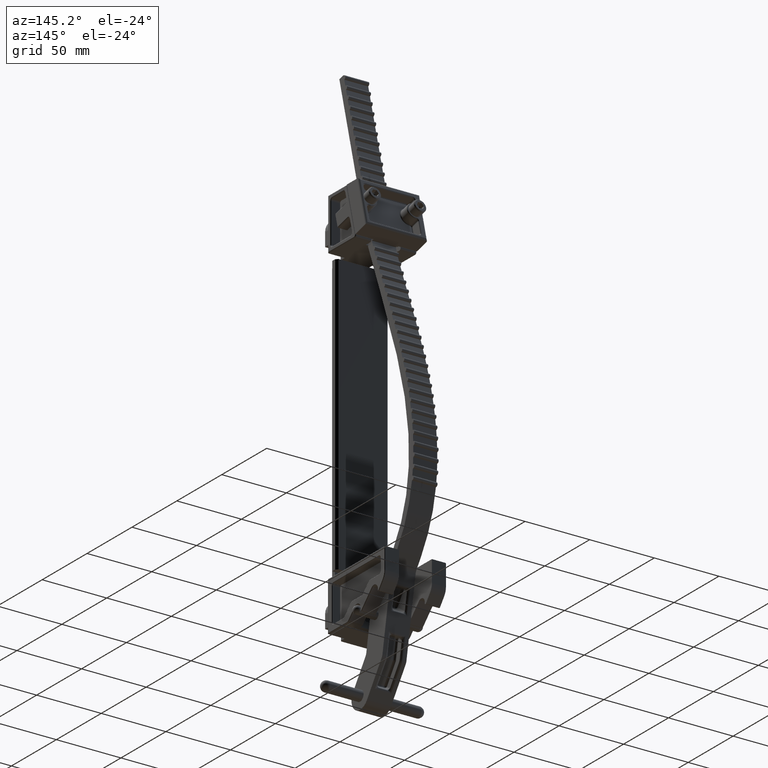
[diagram: clean part render]
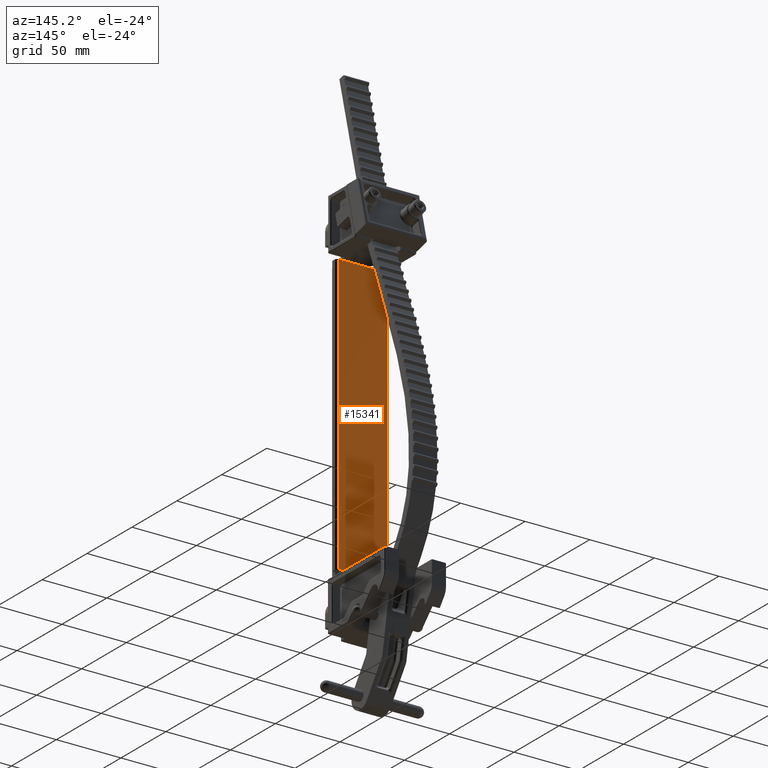
[diagram: same view with one face highlighted and labeled with its STEP entity id]
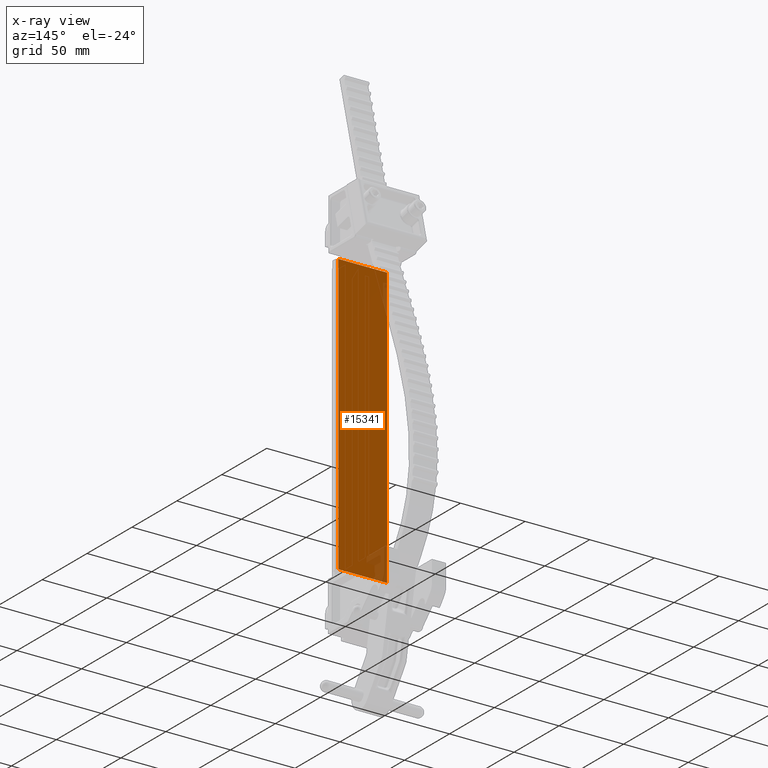
[diagram: x-ray of the same camera — body ghosted, the highlighted face saturated]
A machine part, auxiliary view. The second image highlights one B-rep face of the part: STEP entity #15341.
The next image is the same camera in x-ray: the body ghosted, the highlighted face saturated — about 4% of this face is hidden behind the body in this view.
In plain terms, the highlighted planar face has unit normal (0, -1, 0).
Its self-contained STEP definition (entity closure, byte-faithful):
#1984 = ORIENTED_EDGE ( 'NONE', *, *, #33048, .T. ) ;
#3313 = VERTEX_POINT ( 'NONE', #27821 ) ;
#3531 = EDGE_CURVE ( 'NONE', #6271, #28340, #7188, .T. ) ;
#3917 = EDGE_CURVE ( 'NONE', #6271, #20391, #25806, .T. ) ;
#4207 = DIRECTION ( 'NONE',  ( 0.0000000000000000000, -1.000000000000000000, 0.0000000000000000000 ) ) ;
#4248 = EDGE_CURVE ( 'NONE', #3313, #20391, #11592, .T. ) ;
#4532 = DIRECTION ( 'NONE',  ( -1.000000000000000000, -0.0000000000000000000, -0.0000000000000000000 ) ) ;
#5022 = CARTESIAN_POINT ( 'NONE',  ( 0.7374999999999996000, 0.0000000000000000000, 4.250000000000000000 ) ) ;
#5128 = VECTOR ( 'NONE', #28000, 39.37007874015748100 ) ;
#6271 = VERTEX_POINT ( 'NONE', #11097 ) ;
#6359 = VECTOR ( 'NONE', #15808, 39.37007874015748100 ) ;
#7188 = LINE ( 'NONE', #5022, #6359 ) ;
#10137 = AXIS2_PLACEMENT_3D ( 'NONE', #14550, #4207, #22359 ) ;
#11097 = CARTESIAN_POINT ( 'NONE',  ( 0.7374999999999994900, 0.0000000000000000000, 4.250000000000000000 ) ) ;
#11592 = LINE ( 'NONE', #15013, #31397 ) ;
#11862 = CARTESIAN_POINT ( 'NONE',  ( 0.7374999999999996000, 0.0000000000000000000, -4.250000000000000000 ) ) ;
#12381 = DIRECTION ( 'NONE',  ( 0.0000000000000000000, 0.0000000000000000000, 1.000000000000000000 ) ) ;
#12871 = ORIENTED_EDGE ( 'NONE', *, *, #3531, .T. ) ;
#13229 = CARTESIAN_POINT ( 'NONE',  ( -0.7374999999999994900, 0.0000000000000000000, 4.250000000000000000 ) ) ;
#14550 = CARTESIAN_POINT ( 'NONE',  ( 0.0000000000000000000, 0.0000000000000000000, 4.250000000000000000 ) ) ;
#15013 = CARTESIAN_POINT ( 'NONE',  ( -0.7374999999999996000, 0.0000000000000000000, 4.250000000000000000 ) ) ;
#15341 = ADVANCED_FACE ( 'NONE', ( #23819 ), #32596, .F. ) ;
#15808 = DIRECTION ( 'NONE',  ( 0.0000000000000000000, 0.0000000000000000000, -1.000000000000000000 ) ) ;
#18515 = LINE ( 'NONE', #20058, #32233 ) ;
#20058 = CARTESIAN_POINT ( 'NONE',  ( 0.0000000000000000000, 0.0000000000000000000, -4.250000000000000000 ) ) ;
#20391 = VERTEX_POINT ( 'NONE', #13229 ) ;
#20707 = EDGE_LOOP ( 'NONE', ( #26286, #12871, #1984, #26234 ) ) ;
#22359 = DIRECTION ( 'NONE',  ( 0.0000000000000000000, -0.0000000000000000000, -1.000000000000000000 ) ) ;
#23819 = FACE_OUTER_BOUND ( 'NONE', #20707, .T. ) ;
#25806 = LINE ( 'NONE', #30460, #5128 ) ;
#26234 = ORIENTED_EDGE ( 'NONE', *, *, #4248, .T. ) ;
#26286 = ORIENTED_EDGE ( 'NONE', *, *, #3917, .F. ) ;
#27821 = CARTESIAN_POINT ( 'NONE',  ( -0.7374999999999996000, 0.0000000000000000000, -4.250000000000000000 ) ) ;
#28000 = DIRECTION ( 'NONE',  ( -1.000000000000000000, -0.0000000000000000000, -0.0000000000000000000 ) ) ;
#28340 = VERTEX_POINT ( 'NONE', #11862 ) ;
#30460 = CARTESIAN_POINT ( 'NONE',  ( 0.0000000000000000000, 0.0000000000000000000, 4.250000000000000000 ) ) ;
#31397 = VECTOR ( 'NONE', #12381, 39.37007874015748100 ) ;
#32233 = VECTOR ( 'NONE', #4532, 39.37007874015748100 ) ;
#32596 = PLANE ( 'NONE',  #10137 ) ;
#33048 = EDGE_CURVE ( 'NONE', #28340, #3313, #18515, .T. ) ;